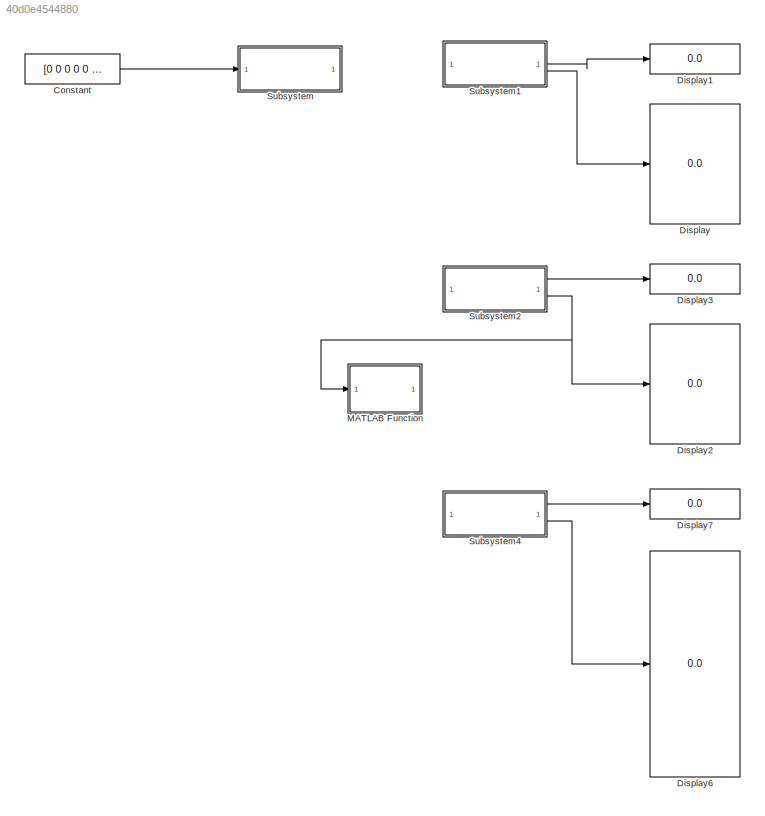
MODEL slx_40d0e4544880
KIND model
CONFIG AbsTol = auto
CONFIG EnableMultiTasking = off
CONFIG FixedStep = auto
CONFIG MaxStep = auto
CONFIG MinStep = auto
CONFIG RelTol = 1e-3
CONFIG SampleTimeConstraint = Unconstrained
CONFIG SolverName = VariableStepAuto
CONFIG StartTime = 0.0
CONFIG StopTime = inf
BLOCK [Constant] Constant
  Value = [0 0 0 0 0 0]
BLOCK [Display] Display
  Decimation = 1
BLOCK [Display] Display1
  Decimation = 1
  NameLocation = left
BLOCK [Display] Display2
  Decimation = 1
BLOCK [Display] Display3
  Decimation = 1
  NameLocation = left
BLOCK [Display] Display6
  Decimation = 1
BLOCK [Display] Display7
  Decimation = 1
  NameLocation = left
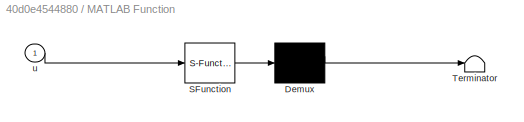
BLOCK [SubSystem] MATLAB Function
  ErrorFcn = Stateflow.Translate.translate
  LibrarySourceBlock = simulink/User-Defined\nFunctions/MATLAB Function
  PermitHierarchicalResolution = ExplicitOnly
  SFBlockType = MATLAB Function
  TreatAsAtomicUnit = on
BLOCK [Demux] MATLAB Function/ Demux 
  Outputs = 1
BLOCK [S-Function] MATLAB Function/ SFunction 
  EnableBusSupport = on
  FunctionName = sf_sfun
  PortCounts = [1 1]
  SFcnIsStateOwnerBlock = off
  SFunctionDeploymentMode = off
  Tag = Stateflow S-Function 2
BLOCK [Terminator] MATLAB Function/ Terminator 
BLOCK [Inport] MATLAB Function/u
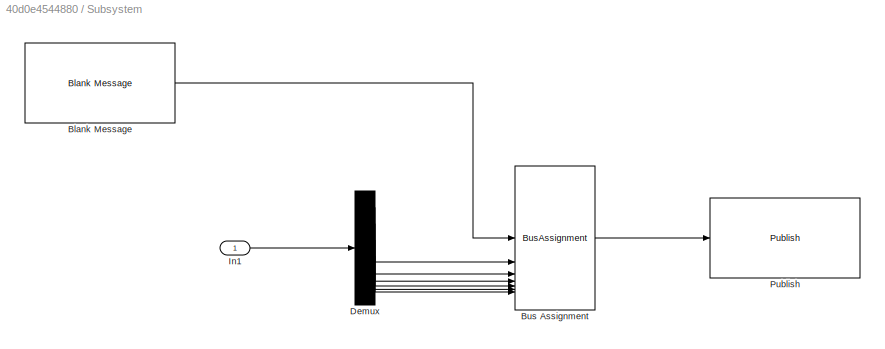
BLOCK [SubSystem] Subsystem
BLOCK [Reference] Subsystem/Blank Message  REF=robotlib/Blank Message
  LibrarySourceBlock = roslib/ROS/Blank Message
  SourceBlock = robotlib/Blank Message
  SourceType = ROS Blank Message
BLOCK [BusAssignment] Subsystem/Bus Assignment
  AssignedSignals = Linear.X,Linear.Z,Linear.Y,Angular.X,Angular.Y,Angular.Z
BLOCK [Demux] Subsystem/Demux
  Outputs = 6
BLOCK [Inport] Subsystem/In1
BLOCK [Reference] Subsystem/Publish  REF=robotlib/Publish
  LibrarySourceBlock = roslib/ROS/Publish
  SourceBlock = robotlib/Publish
  SourceType = ROS Publish
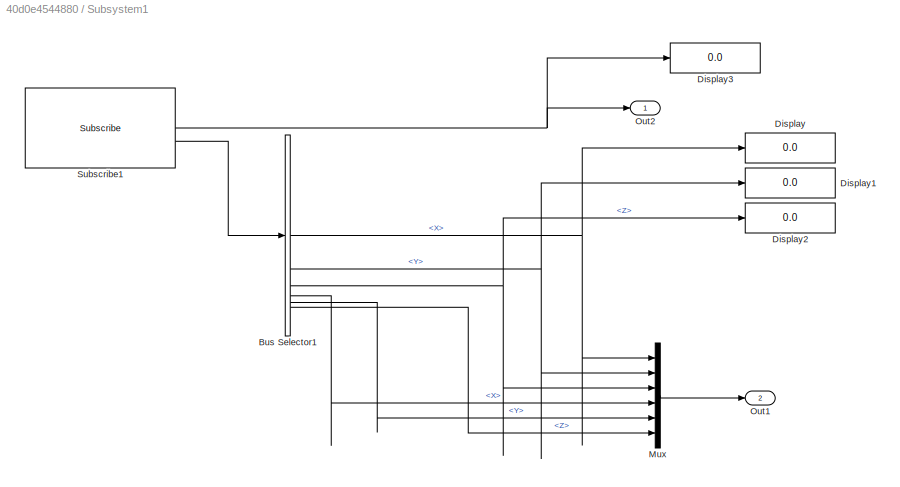
BLOCK [SubSystem] Subsystem1
BLOCK [BusSelector] Subsystem1/Bus Selector1
  OutputSignals = AngularVelocity.X,AngularVelocity.Y,AngularVelocity.Z,LinearAcceleration.X,LinearAcceleration.Y,LinearAcceleration.Z
BLOCK [Display] Subsystem1/Display
  Decimation = 1
BLOCK [Display] Subsystem1/Display1
  Decimation = 1
BLOCK [Display] Subsystem1/Display2
  Decimation = 1
BLOCK [Display] Subsystem1/Display3
  Decimation = 1
BLOCK [Mux] Subsystem1/Mux
  DisplayOption = bar
  Inputs = 6
BLOCK [Outport] Subsystem1/Out1
  Port = 2
BLOCK [Outport] Subsystem1/Out2
BLOCK [Reference] Subsystem1/Subscribe1  REF=robotlib/Subscribe
  LibrarySourceBlock = roslib/ROS/Subscribe
  SourceBlock = robotlib/Subscribe
  SourceType = ROS Subscribe
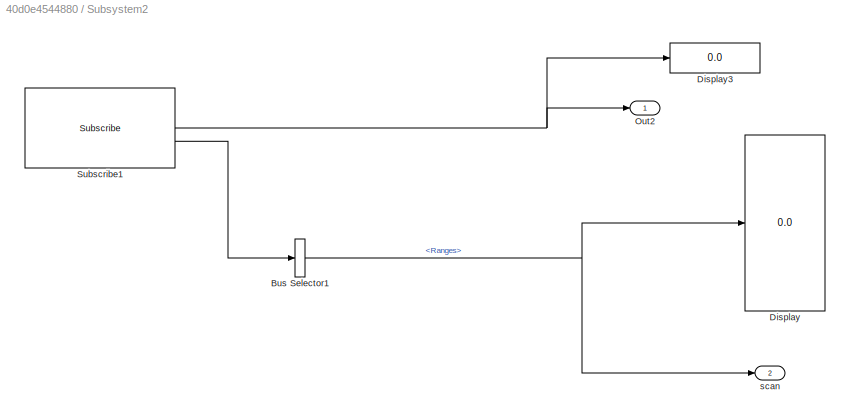
BLOCK [SubSystem] Subsystem2
BLOCK [BusSelector] Subsystem2/Bus Selector1
  OutputSignals = Ranges
BLOCK [Display] Subsystem2/Display
  Decimation = 1
BLOCK [Display] Subsystem2/Display3
  Decimation = 1
BLOCK [Outport] Subsystem2/Out2
BLOCK [Reference] Subsystem2/Subscribe1  REF=robotlib/Subscribe
  LibrarySourceBlock = roslib/ROS/Subscribe
  SourceBlock = robotlib/Subscribe
  SourceType = ROS Subscribe
BLOCK [Outport] Subsystem2/scan
  Port = 2
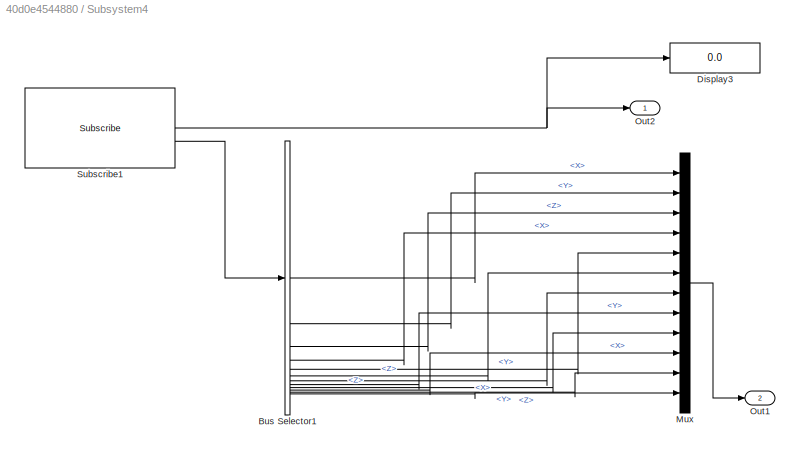
BLOCK [SubSystem] Subsystem4
BLOCK [BusSelector] Subsystem4/Bus Selector1
  OutputSignals = Pose.Pose.Position.X,Pose.Pose.Position.Y,Pose.Pose.Position.Z,Pose.Pose.Orientation.X,Pose.Pose.Orientation.Y,Pose.Pose.Orientation.Z,Twist.Twist.Linear.X,Twist.Twist.Linear.Y,Twist.Twist.Linear.Z,Twist.Twist.Angular.X,Twist.Twist.Angular.Y,Twist.Twist.Angular.Z
BLOCK [Display] Subsystem4/Display3
  Decimation = 1
BLOCK [Mux] Subsystem4/Mux
  DisplayOption = bar
  Inputs = 12
BLOCK [Outport] Subsystem4/Out1
  Port = 2
BLOCK [Outport] Subsystem4/Out2
BLOCK [Reference] Subsystem4/Subscribe1  REF=robotlib/Subscribe
  LibrarySourceBlock = roslib/ROS/Subscribe
  SourceBlock = robotlib/Subscribe
  SourceType = ROS Subscribe
LINE Constant:1 -> Subsystem:1
LINE Subsystem/Blank Message:1 -> Subsystem/Bus Assignment:1
LINE Subsystem/Bus Assignment:1 -> Subsystem/Publish:1
LINE Subsystem/Demux:1 -> Subsystem/Bus Assignment:2
LINE Subsystem/Demux:2 -> Subsystem/Bus Assignment:3
LINE Subsystem/Demux:3 -> Subsystem/Bus Assignment:4
LINE Subsystem/Demux:4 -> Subsystem/Bus Assignment:5
LINE Subsystem/Demux:5 -> Subsystem/Bus Assignment:6
LINE Subsystem/Demux:6 -> Subsystem/Bus Assignment:7
LINE Subsystem/In1:1 -> Subsystem/Demux:1
NET Subsystem1/Bus Selector1:1 -> Subsystem1/Display:1, Subsystem1/Mux:1
NET Subsystem1/Bus Selector1:2 -> Subsystem1/Display1:1, Subsystem1/Mux:2
NET Subsystem1/Bus Selector1:3 -> Subsystem1/Display2:1, Subsystem1/Mux:3
LINE Subsystem1/Bus Selector1:4 -> Subsystem1/Mux:4
LINE Subsystem1/Bus Selector1:5 -> Subsystem1/Mux:5
LINE Subsystem1/Bus Selector1:6 -> Subsystem1/Mux:6
LINE Subsystem1/Mux:1 -> Subsystem1/Out1:1
NET Subsystem1/Subscribe1:1 -> Subsystem1/Display3:1, Subsystem1/Out2:1
LINE Subsystem1/Subscribe1:2 -> Subsystem1/Bus Selector1:1
LINE Subsystem1:1 -> Display1:1
LINE Subsystem1:2 -> Display:1
NET Subsystem2/Bus Selector1:1 -> Subsystem2/Display:1, Subsystem2/scan:1
NET Subsystem2/Subscribe1:1 -> Subsystem2/Display3:1, Subsystem2/Out2:1
LINE Subsystem2/Subscribe1:2 -> Subsystem2/Bus Selector1:1
LINE Subsystem2:1 -> Display3:1
NET Subsystem2:2 -> Display2:1, MATLAB Function:1
LINE Subsystem4/Bus Selector1:1 -> Subsystem4/Mux:1
LINE Subsystem4/Bus Selector1:10 -> Subsystem4/Mux:10
LINE Subsystem4/Bus Selector1:11 -> Subsystem4/Mux:11
LINE Subsystem4/Bus Selector1:12 -> Subsystem4/Mux:12
LINE Subsystem4/Bus Selector1:2 -> Subsystem4/Mux:2
LINE Subsystem4/Bus Selector1:3 -> Subsystem4/Mux:3
LINE Subsystem4/Bus Selector1:4 -> Subsystem4/Mux:4
LINE Subsystem4/Bus Selector1:5 -> Subsystem4/Mux:5
LINE Subsystem4/Bus Selector1:6 -> Subsystem4/Mux:6
LINE Subsystem4/Bus Selector1:7 -> Subsystem4/Mux:7
LINE Subsystem4/Bus Selector1:8 -> Subsystem4/Mux:8
LINE Subsystem4/Bus Selector1:9 -> Subsystem4/Mux:9
LINE Subsystem4/Mux:1 -> Subsystem4/Out1:1
NET Subsystem4/Subscribe1:1 -> Subsystem4/Display3:1, Subsystem4/Out2:1
LINE Subsystem4/Subscribe1:2 -> Subsystem4/Bus Selector1:1
LINE Subsystem4:1 -> Display7:1
LINE Subsystem4:2 -> Display6:1
note: NET lines group one-source signal fan-out (src -> all destinations, sorted); 1:1 wires keep LINE
CHART MATLAB Function states=1 transitions=1
  STATE_LABEL 'eML_blk_kernel()'
  STATE_LABEL 'SCRIPT:\nfunction fcn(u)\nfigure(1)\nplot(u)\n%y = u;\n'
CHART  states=0 transitions=0
